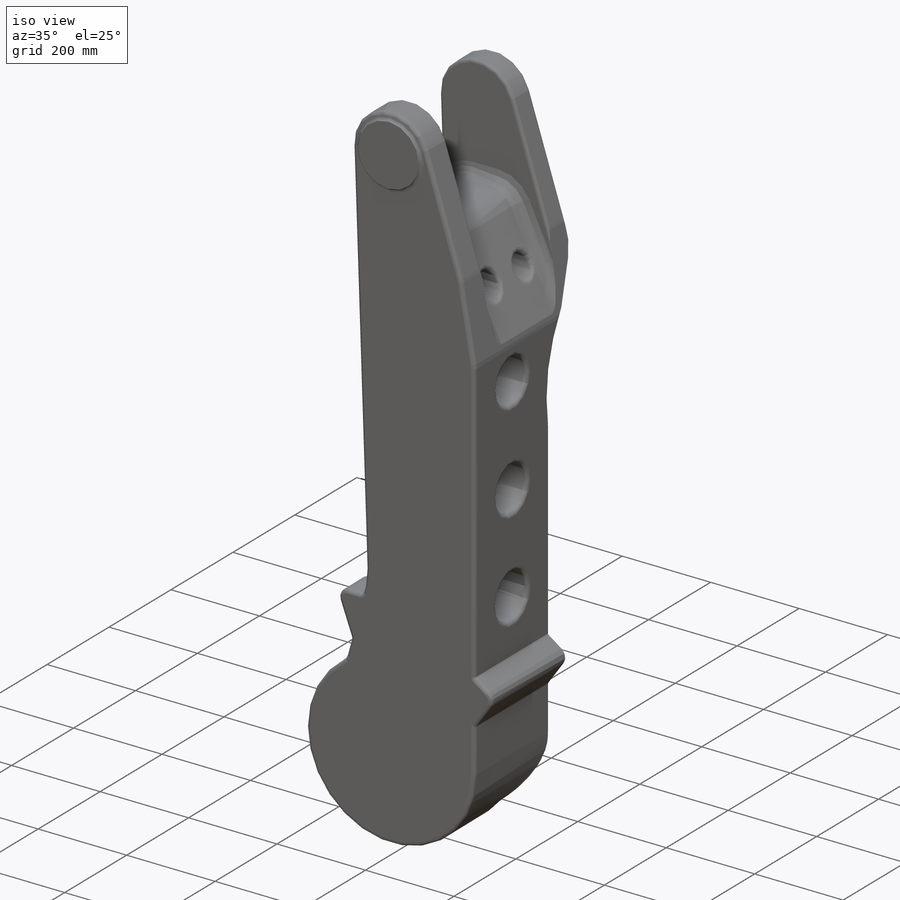
[diagram: iso view]
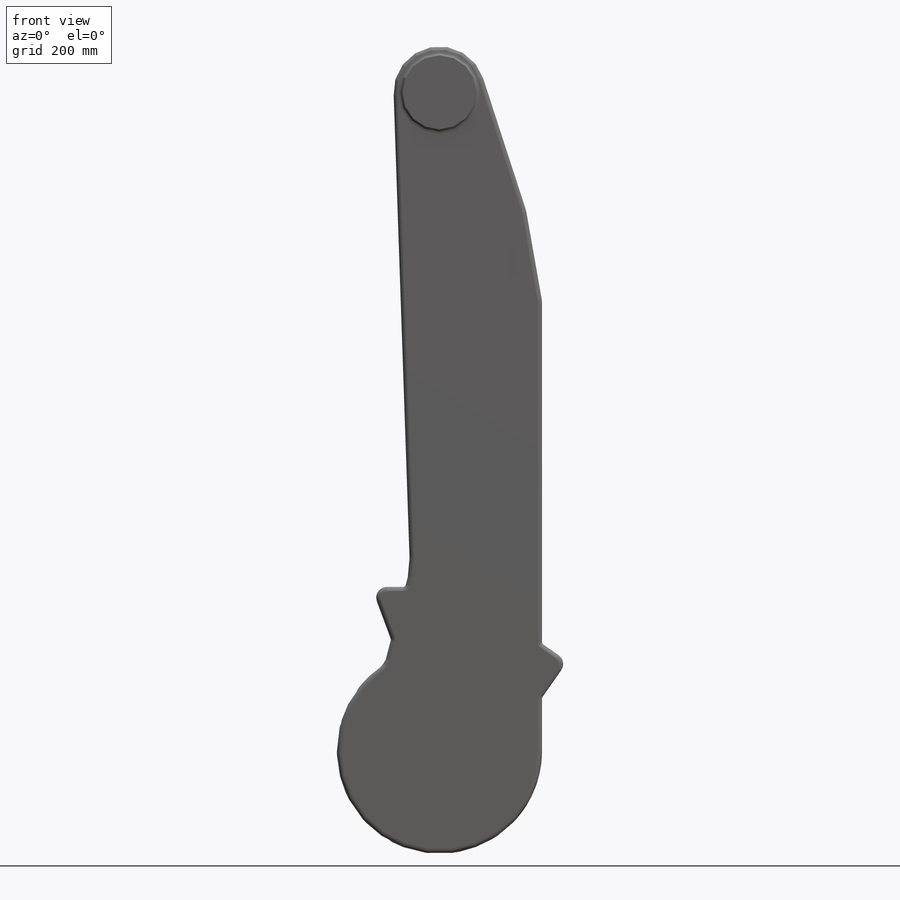
[diagram: front view]
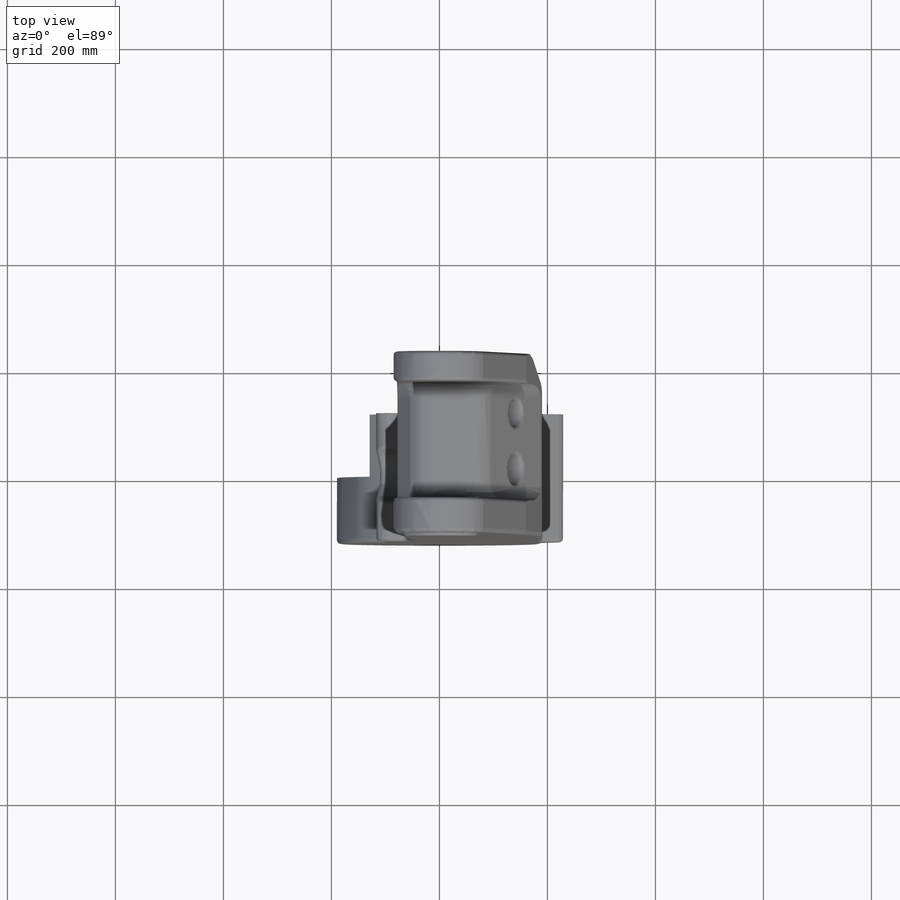
[diagram: top view]
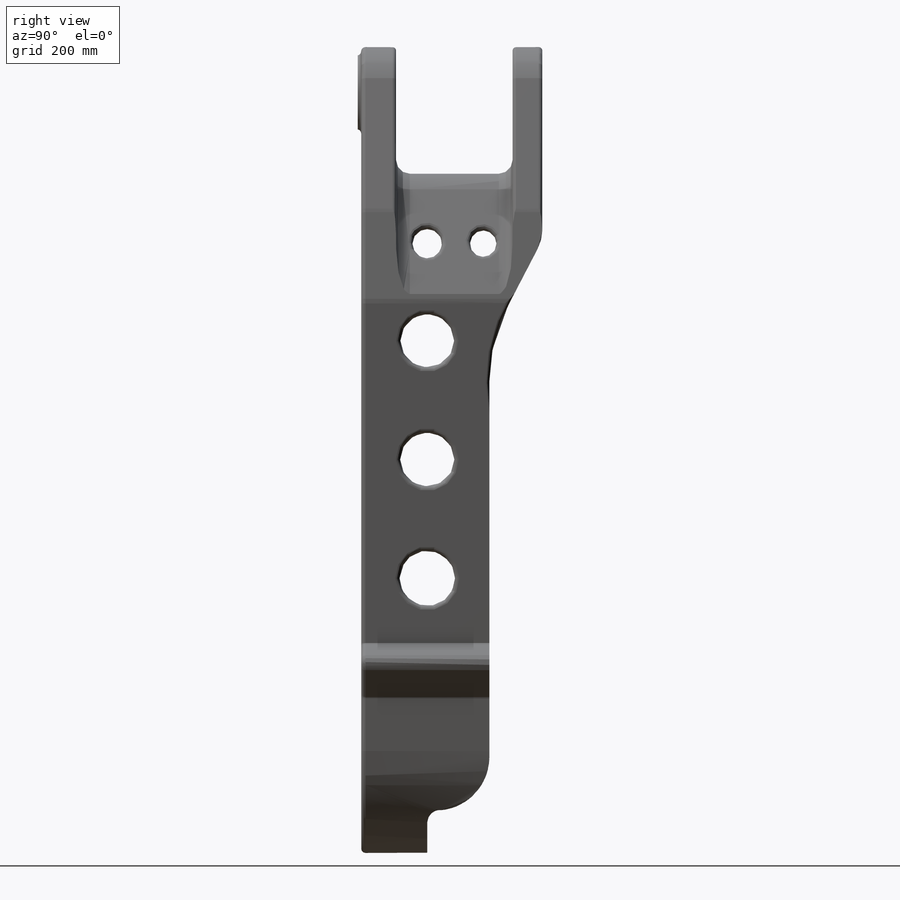
[diagram: right view]
SOLIDWORKS PART (.sldprt)
format: sldprt  version: not decoded by parser v0  size: 525,824 bytes
history: native  units: mm
features: sketch x7, fillet x6, cut_extrude x4, extrude x3, material x1 (+13 scaffold rows collapsed)
feature tree (34):
  scaffold x13  (default folders/planes/origin — collapsed)
  material  "Material <not specified>"
  sketch  "Sketch3"  dims[D1=25.4mm]
  extrude  "Extrude1"  Depth=119.38mm
  sketch  "Sketch4"
  cut_extrude  "Cut-Extrude1"  [1 undecoded]
  sketch  "Sketch5"
  cut_extrude  "Cut-Extrude2"  [1 undecoded]
  sketch  "Sketch6"  dims[D2=50.8mm D1=0.0mm]
  cut_extrude  "Cut-Extrude4"  [1 undecoded]
  fillet  "Fillet1"  Radius=76.2mm
  fillet  "Fillet2"  Radius=25.4mm
  sketch  "Sketch7"
  extrude  "Extrude2"  Depth=6.35mm
  sketch  "Sketch8"
  cut_extrude  "Cut-Extrude5"  [1 undecoded]
  fillet  "Fillet3"  Radius=7.874mm
  fillet  "Fillet4"  Radius=7.874mm
  fillet  "Fillet5"  Radius=6.35mm
  fillet  "Fillet6"  Radius=6.35mm
  sketch  "Sketch9"
  extrude  "marker_M3_B"  [1 undecoded]
decode coverage: 10 of 20 modeling features carry decoded parameters
note: 5 parameter values undecoded
summary: no parameter record found for 5 features
note: suppression state not decoded; provenance and decode notes live in map.json
